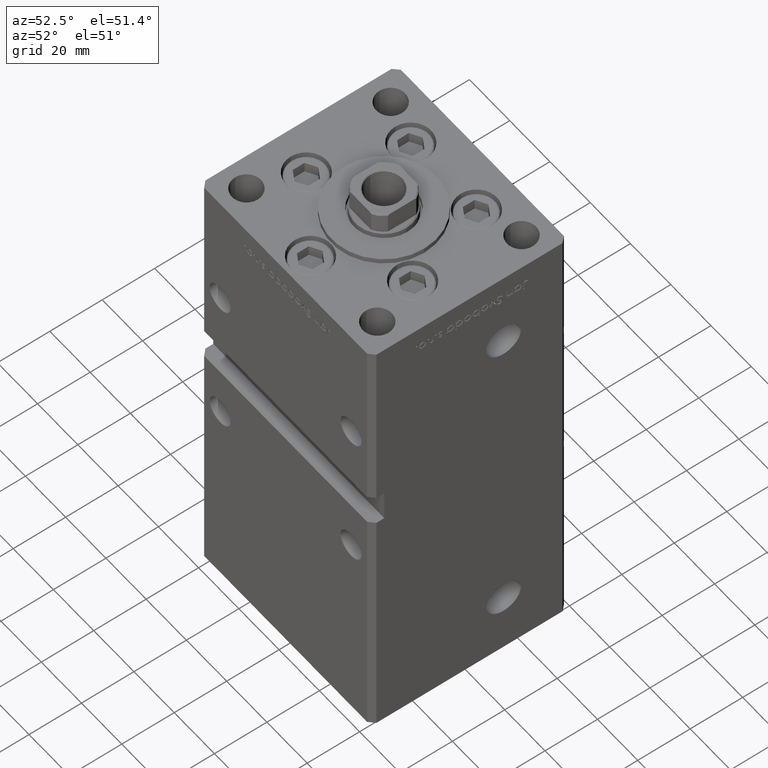
[diagram: clean part render]
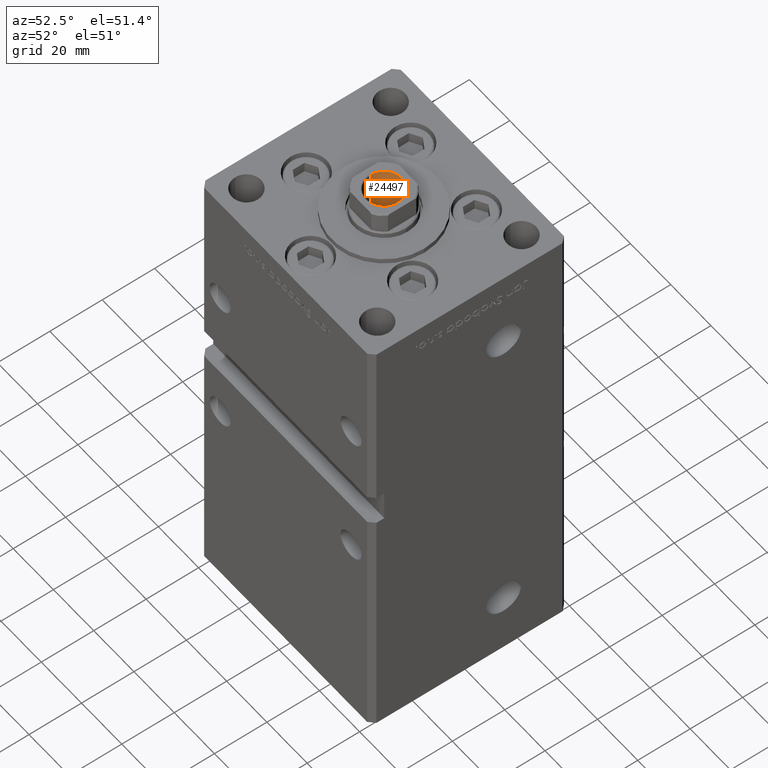
[diagram: same view with one face highlighted and labeled with its STEP entity id]
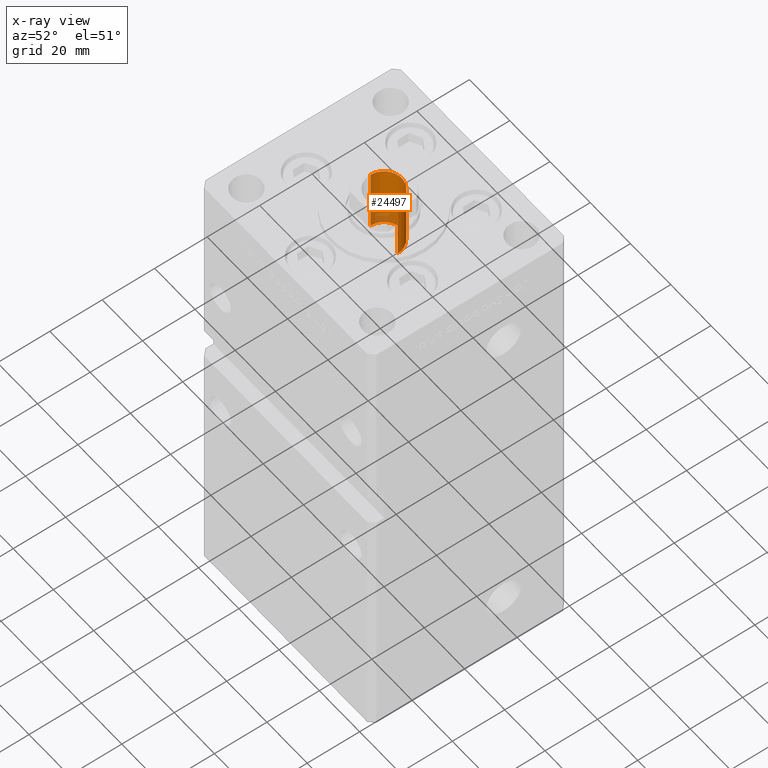
[diagram: x-ray of the same camera — body ghosted, the highlighted face saturated]
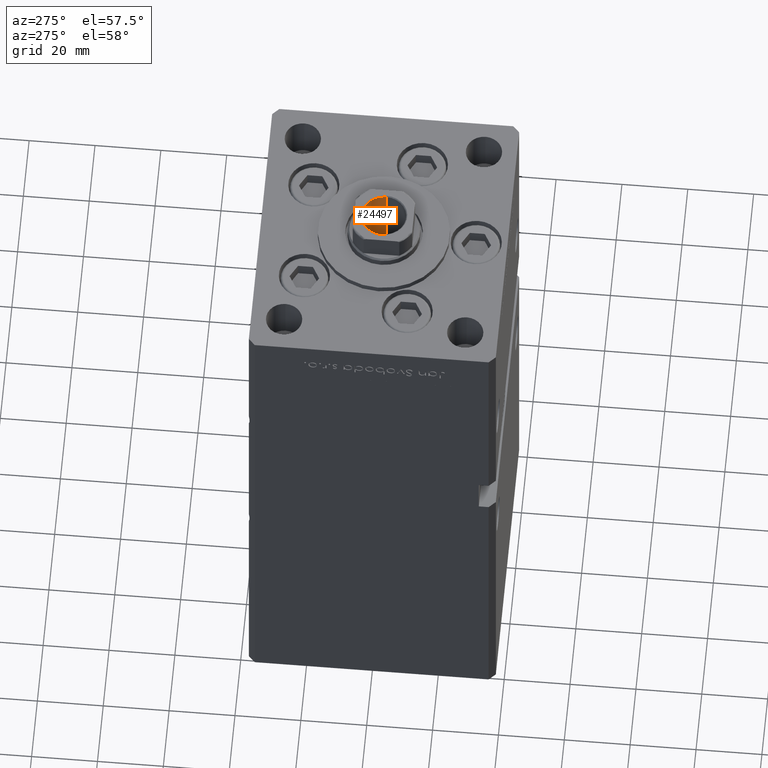
[diagram: same view with one face highlighted and labeled with its STEP entity id]
A machine part, auxiliary view. The second image highlights one B-rep face of the part: STEP entity #24497.
The next image is the same camera in x-ray: the body ghosted, the highlighted face saturated — about 7% of this face is hidden behind the body in this view.
A second angle (auxiliary view) of the same face is appended — the face is thin or edge-on in the first view.
In plain terms, the highlighted cylindrical surface (edge-blend (fillet) strip) has radius 6.75 mm, axis along (0, 0, 1).
Its self-contained STEP definition (entity closure, byte-faithful):
#475 = VECTOR ( 'NONE', #51768, 1000.000000000000000 ) ;
#491 = DIRECTION ( 'NONE',  ( -0.000000000000000000, -0.000000000000000000, 1.000000000000000000 ) ) ;
#7510 = EDGE_CURVE ( 'NONE', #20494, #32857, #23028, .T. ) ;
#7699 = ORIENTED_EDGE ( 'NONE', *, *, #52063, .F. ) ;
#8492 = EDGE_CURVE ( 'NONE', #29881, #47947, #17054, .T. ) ;
#10041 = DIRECTION ( 'NONE',  ( -0.000000000000000000, -0.000000000000000000, 1.000000000000000000 ) ) ;
#12059 = LINE ( 'NONE', #41059, #48773 ) ;
#16439 = CARTESIAN_POINT ( 'NONE',  ( 0.000000000000000000, 0.000000000000000000, 155.4499999999999886 ) ) ;
#17054 = CIRCLE ( 'NONE', #51327, 6.749999999999993783 ) ;
#20494 = VERTEX_POINT ( 'NONE', #45803 ) ;
#21005 = DIRECTION ( 'NONE',  ( 1.000000000000000000, 0.000000000000000000, 0.000000000000000000 ) ) ;
#21353 = ORIENTED_EDGE ( 'NONE', *, *, #8492, .F. ) ;
#21716 = CARTESIAN_POINT ( 'NONE',  ( -6.749999999999995559, 8.266365894244628417E-16, 155.4499999999999886 ) ) ;
#21877 = AXIS2_PLACEMENT_3D ( 'NONE', #30459, #10041, #46811 ) ;
#22988 = AXIS2_PLACEMENT_3D ( 'NONE', #16439, #29069, #21005 ) ;
#23028 = CIRCLE ( 'NONE', #22988, 6.749999999999995559 ) ;
#24313 = DIRECTION ( 'NONE',  ( 1.000000000000000000, 0.000000000000000000, 0.000000000000000000 ) ) ;
#24497 = ADVANCED_FACE ( 'NONE', ( #50845 ), #43062, .F. ) ;
#29069 = DIRECTION ( 'NONE',  ( 0.000000000000000000, 0.000000000000000000, 1.000000000000000000 ) ) ;
#29144 = CARTESIAN_POINT ( 'NONE',  ( 0.000000000000000000, 0.000000000000000000, 130.7500000000000000 ) ) ;
#29881 = VERTEX_POINT ( 'NONE', #41934 ) ;
#30459 = CARTESIAN_POINT ( 'NONE',  ( 0.000000000000000000, 0.000000000000000000, 155.7500000000000000 ) ) ;
#30557 = EDGE_CURVE ( 'NONE', #29881, #20494, #36218, .T. ) ;
#32182 = CARTESIAN_POINT ( 'NONE',  ( 6.749999999999995559, 0.000000000000000000, 155.7500000000000000 ) ) ;
#32857 = VERTEX_POINT ( 'NONE', #21716 ) ;
#33624 = CARTESIAN_POINT ( 'NONE',  ( -6.749999999999993783, 8.266365894244626445E-16, 130.7500000000000000 ) ) ;
#34282 = ORIENTED_EDGE ( 'NONE', *, *, #30557, .T. ) ;
#35191 = EDGE_LOOP ( 'NONE', ( #7699, #21353, #34282, #44497 ) ) ;
#36218 = LINE ( 'NONE', #32182, #475 ) ;
#41059 = CARTESIAN_POINT ( 'NONE',  ( -6.749999999999995559, 8.266365894244628417E-16, 155.7500000000000000 ) ) ;
#41934 = CARTESIAN_POINT ( 'NONE',  ( 6.749999999999993783, 0.000000000000000000, 130.7500000000000000 ) ) ;
#43062 = CYLINDRICAL_SURFACE ( 'NONE', #21877, 6.749999999999995559 ) ;
#44497 = ORIENTED_EDGE ( 'NONE', *, *, #7510, .T. ) ;
#44706 = DIRECTION ( 'NONE',  ( -0.000000000000000000, -0.000000000000000000, 1.000000000000000000 ) ) ;
#45803 = CARTESIAN_POINT ( 'NONE',  ( 6.749999999999995559, 0.000000000000000000, 155.4499999999999886 ) ) ;
#46811 = DIRECTION ( 'NONE',  ( 1.000000000000000000, 0.000000000000000000, 0.000000000000000000 ) ) ;
#47947 = VERTEX_POINT ( 'NONE', #33624 ) ;
#48773 = VECTOR ( 'NONE', #491, 1000.000000000000000 ) ;
#50845 = FACE_OUTER_BOUND ( 'NONE', #35191, .T. ) ;
#51327 = AXIS2_PLACEMENT_3D ( 'NONE', #29144, #44706, #24313 ) ;
#51768 = DIRECTION ( 'NONE',  ( -0.000000000000000000, -0.000000000000000000, 1.000000000000000000 ) ) ;
#52063 = EDGE_CURVE ( 'NONE', #47947, #32857, #12059, .T. ) ;